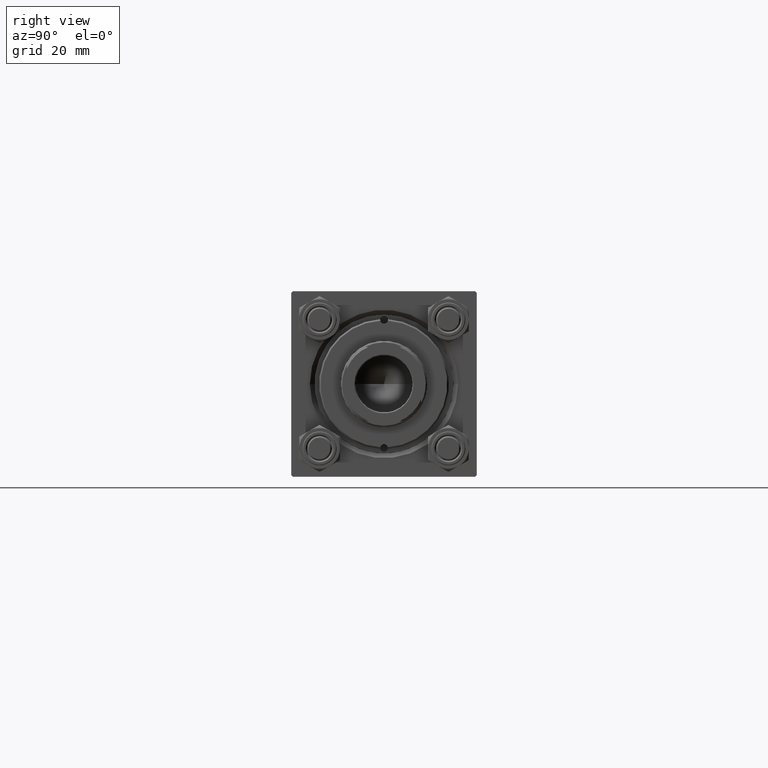
[diagram: clean part render]
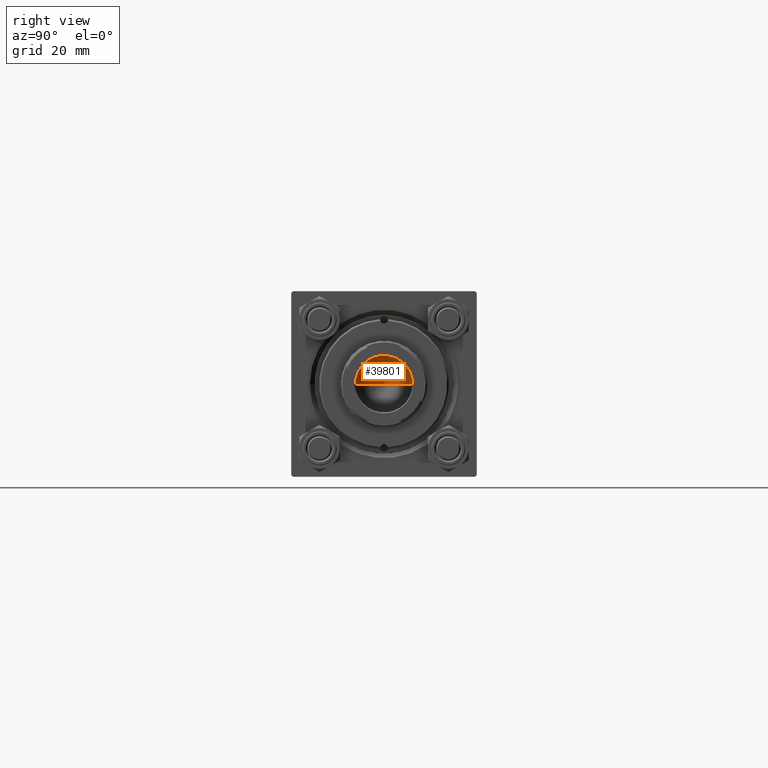
[diagram: same view with one face highlighted and labeled with its STEP entity id]
A machine part, right view. The second image highlights one B-rep face of the part: STEP entity #39801.
In plain terms, the highlighted conical surface has half-angle 59 deg.
Its self-contained STEP definition (entity closure, byte-faithful):
#880 = DIRECTION ( 'NONE',  ( -0.000000000000000000, -0.000000000000000000, 1.000000000000000000 ) ) ;
#3680 = DIRECTION ( 'NONE',  ( -0.8571673007021117785, 1.049727191138617956E-16, 0.5150380749100550437 ) ) ;
#6949 = ORIENTED_EDGE ( 'NONE', *, *, #37575, .F. ) ;
#10091 = CARTESIAN_POINT ( 'NONE',  ( 9.249999999999992895, 0.000000000000000000, 101.0000000000000000 ) ) ;
#12138 = CIRCLE ( 'NONE', #42216, 9.249999999999992895 ) ;
#16393 = DIRECTION ( 'NONE',  ( 1.000000000000000000, 0.000000000000000000, 0.000000000000000000 ) ) ;
#17439 = CARTESIAN_POINT ( 'NONE',  ( 9.249999999999992895, 0.000000000000000000, 101.0000000000000000 ) ) ;
#17572 = CARTESIAN_POINT ( 'NONE',  ( -9.769621978240258809E-15, 0.000000000000000000, 95.44203927399506426 ) ) ;
#19303 = EDGE_LOOP ( 'NONE', ( #6949, #48073, #23391 ) ) ;
#20062 = EDGE_CURVE ( 'NONE', #49964, #38375, #12138, .T. ) ;
#20204 = CARTESIAN_POINT ( 'NONE',  ( 0.000000000000000000, 0.000000000000000000, 101.0000000000000000 ) ) ;
#21099 = VERTEX_POINT ( 'NONE', #17572 ) ;
#22225 = VECTOR ( 'NONE', #25827, 1000.000000000000000 ) ;
#23018 = CARTESIAN_POINT ( 'NONE',  ( -9.249999999999992895, 1.132798289211300712E-15, 101.0000000000000000 ) ) ;
#23391 = ORIENTED_EDGE ( 'NONE', *, *, #20062, .T. ) ;
#25827 = DIRECTION ( 'NONE',  ( 0.8571673007021117785, 0.000000000000000000, 0.5150380749100550437 ) ) ;
#26767 = DIRECTION ( 'NONE',  ( 1.000000000000000000, 0.000000000000000000, 0.000000000000000000 ) ) ;
#29592 = CARTESIAN_POINT ( 'NONE',  ( 0.000000000000000000, 0.000000000000000000, 101.0000000000000000 ) ) ;
#31030 = EDGE_CURVE ( 'NONE', #21099, #49964, #47411, .T. ) ;
#31240 = CARTESIAN_POINT ( 'NONE',  ( -9.249999999999992895, 1.132798289211300712E-15, 101.0000000000000000 ) ) ;
#35299 = CONICAL_SURFACE ( 'NONE', #44228, 9.249999999999992895, 1.029744258676653423 ) ;
#37575 = EDGE_CURVE ( 'NONE', #21099, #38375, #45422, .T. ) ;
#38375 = VERTEX_POINT ( 'NONE', #10091 ) ;
#39801 = ADVANCED_FACE ( 'NONE', ( #43371 ), #35299, .F. ) ;
#42216 = AXIS2_PLACEMENT_3D ( 'NONE', #29592, #48934, #26767 ) ;
#43218 = VECTOR ( 'NONE', #3680, 1000.000000000000000 ) ;
#43371 = FACE_OUTER_BOUND ( 'NONE', #19303, .T. ) ;
#44228 = AXIS2_PLACEMENT_3D ( 'NONE', #20204, #880, #16393 ) ;
#45422 = LINE ( 'NONE', #17439, #22225 ) ;
#47411 = LINE ( 'NONE', #23018, #43218 ) ;
#48073 = ORIENTED_EDGE ( 'NONE', *, *, #31030, .T. ) ;
#48934 = DIRECTION ( 'NONE',  ( -0.000000000000000000, -0.000000000000000000, 1.000000000000000000 ) ) ;
#49964 = VERTEX_POINT ( 'NONE', #31240 ) ;